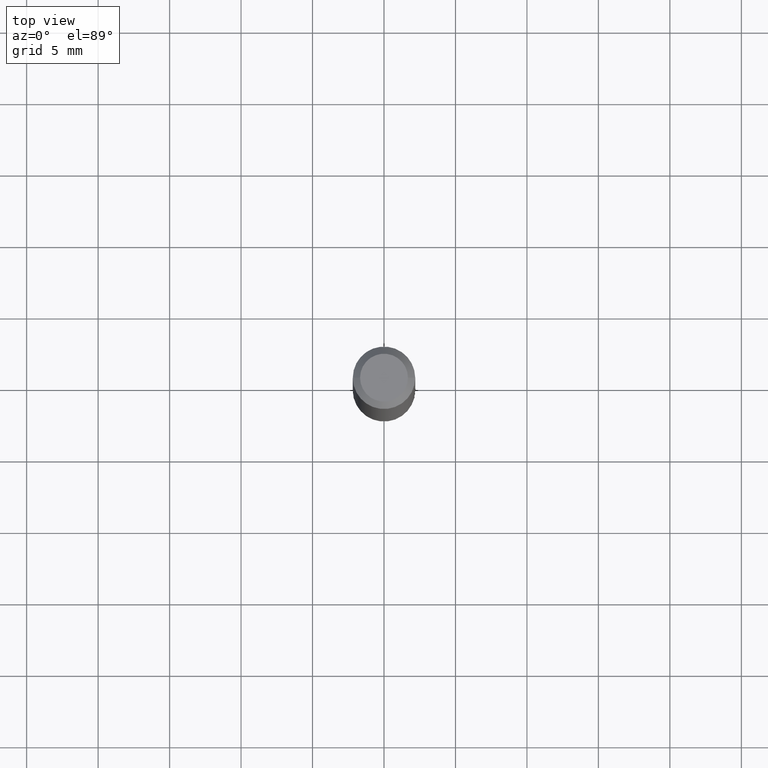
[diagram: clean part render]
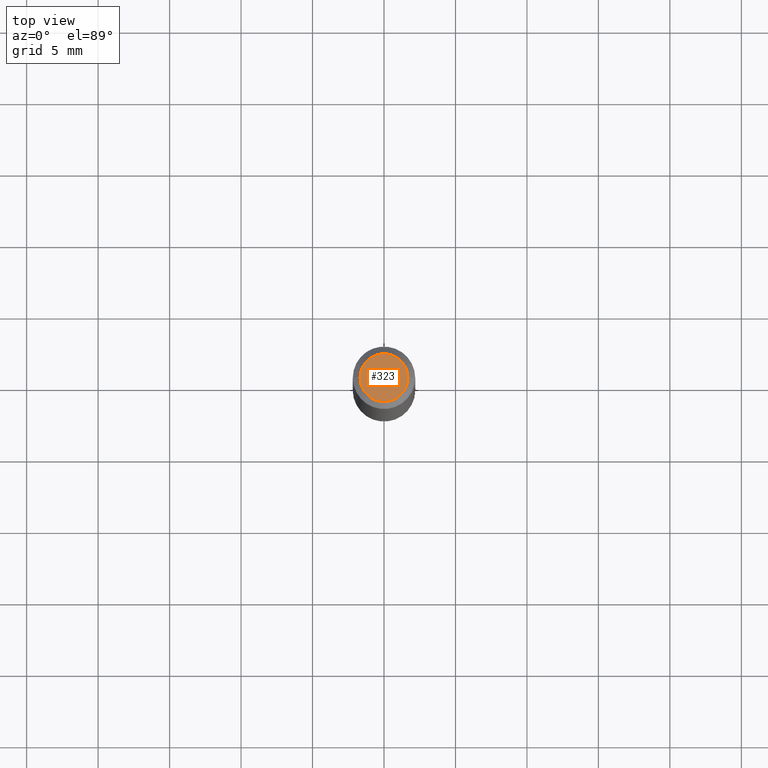
[diagram: same view with one face highlighted and labeled with its STEP entity id]
A machine part, top view. The second image highlights one B-rep face of the part: STEP entity #323.
In plain terms, the highlighted planar face has unit normal (0, -0, -1).
Its self-contained STEP definition (entity closure, byte-faithful):
#12 = DIRECTION ( 'NONE',  ( 1.000000000000000000, -6.982962677686267499E-15, 4.876176775795935793E-29 ) ) ;
#13 = ORIENTED_EDGE ( 'NONE', *, *, #228, .T. ) ;
#53 = DIRECTION ( 'NONE',  ( 1.000000000000000000, -6.982962677686267499E-15, 4.876176775795935793E-29 ) ) ;
#54 = CARTESIAN_POINT ( 'NONE',  ( -0.06594999999999982820, 4.954412019818392789E-16, -3.342610388892703263E-30 ) ) ;
#62 = EDGE_CURVE ( 'NONE', #191, #121, #170, .T. ) ;
#100 = AXIS2_PLACEMENT_3D ( 'NONE', #204, #108, #53 ) ;
#108 = DIRECTION ( 'NONE',  ( -2.445468806185136597E-29, 3.491481338843145583E-15, 1.000000000000000000 ) ) ;
#114 = DIRECTION ( 'NONE',  ( -1.000000000000000000, 6.982962677686265922E-15, -4.876176775795935793E-29 ) ) ;
#121 = VERTEX_POINT ( 'NONE', #288 ) ;
#170 = CIRCLE ( 'NONE', #187, 0.06594999999999982820 ) ;
#187 = AXIS2_PLACEMENT_3D ( 'NONE', #280, #372, #12 ) ;
#191 = VERTEX_POINT ( 'NONE', #54 ) ;
#204 = CARTESIAN_POINT ( 'NONE',  ( 0.000000000000000000, 0.000000000000000000, 0.000000000000000000 ) ) ;
#228 = EDGE_CURVE ( 'NONE', #121, #191, #274, .T. ) ;
#238 = PLANE ( 'NONE',  #363 ) ;
#241 = ORIENTED_EDGE ( 'NONE', *, *, #62, .T. ) ;
#254 = EDGE_LOOP ( 'NONE', ( #241, #13 ) ) ;
#266 = DIRECTION ( 'NONE',  ( 2.438088387897960049E-29, -3.491481338843145188E-15, -1.000000000000000000 ) ) ;
#274 = CIRCLE ( 'NONE', #100, 0.06594999999999982820 ) ;
#280 = CARTESIAN_POINT ( 'NONE',  ( 0.000000000000000000, 0.000000000000000000, 0.000000000000000000 ) ) ;
#288 = CARTESIAN_POINT ( 'NONE',  ( 0.06594999999999982820, -5.559696363191780784E-16, 3.553944287850914187E-30 ) ) ;
#323 = ADVANCED_FACE ( 'NONE', ( #364 ), #238, .F. ) ;
#358 = CARTESIAN_POINT ( 'NONE',  ( 4.605263885934080242E-16, 0.06594999999999982820, -2.302631942967048503E-16 ) ) ;
#363 = AXIS2_PLACEMENT_3D ( 'NONE', #358, #266, #114 ) ;
#364 = FACE_OUTER_BOUND ( 'NONE', #254, .T. ) ;
#372 = DIRECTION ( 'NONE',  ( -2.445468806185136597E-29, 3.491481338843145583E-15, 1.000000000000000000 ) ) ;